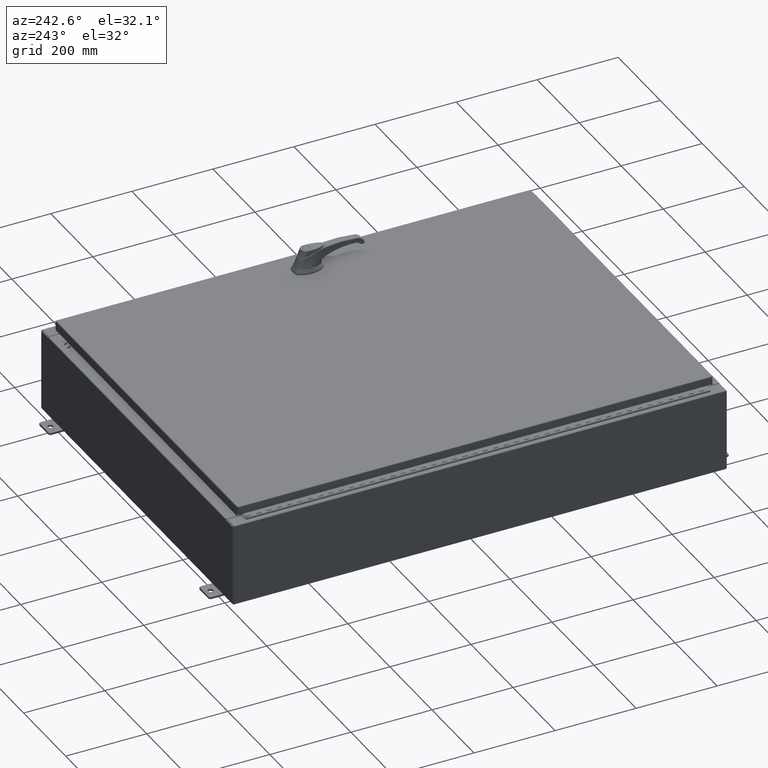
[diagram: clean part render]
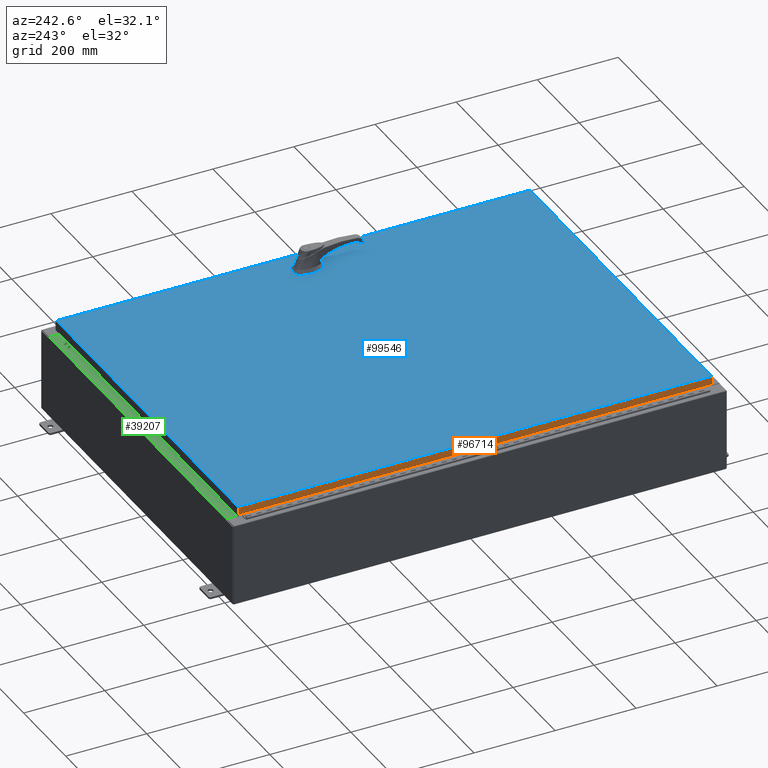
[diagram: same view with three faces highlighted in distinct colors, each labeled with its STEP entity id]
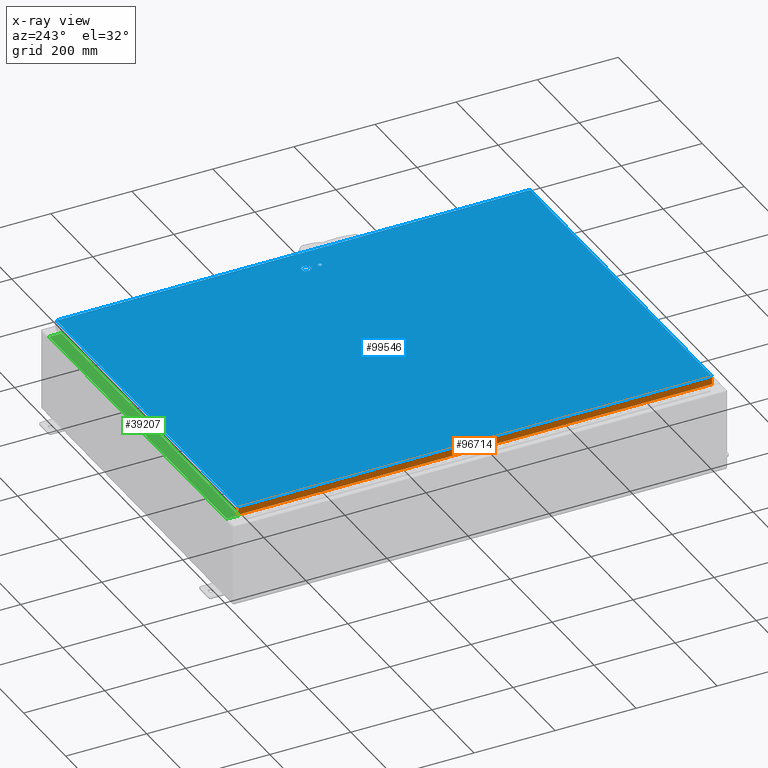
[diagram: x-ray of the same camera — body ghosted, the three highlighted faces saturated]
A machine part, auxiliary view with three faces highlighted in distinct colors.
The next image is the same camera in x-ray (body ghosted, the three faces saturated) — at least one of them is partly hidden behind the body in this view.
Their STEP definitions:

[orange] entity #96714 — the highlighted planar face has unit normal (1, -0, -0).
#936 = AXIS2_PLACEMENT_3D ( 'NONE', #68787, #6620, #79234 ) ;
#2539 = VERTEX_POINT ( 'NONE', #120400 ) ;
#6620 = DIRECTION ( 'NONE',  ( 1.000000000000000000, -9.463403459476060900E-017, -3.034122441942816500E-015 ) ) ;
#10476 = DIRECTION ( 'NONE',  ( -3.034122441942816100E-015, 6.982962677686267500E-015, -1.000000000000000000 ) ) ;
#13644 = LINE ( 'NONE', #41786, #123993 ) ;
#18206 = ORIENTED_EDGE ( 'NONE', *, *, #126277, .F. ) ;
#19407 = ORIENTED_EDGE ( 'NONE', *, *, #68568, .F. ) ;
#28041 = VERTEX_POINT ( 'NONE', #56480 ) ;
#29623 = LINE ( 'NONE', #124629, #50746 ) ;
#36156 = ORIENTED_EDGE ( 'NONE', *, *, #110078, .T. ) ;
#40625 = CARTESIAN_POINT ( 'NONE',  ( -17.07799999999999900, -23.00515786437627200, -0.07469999999999976700 ) ) ;
#41786 = CARTESIAN_POINT ( 'NONE',  ( -17.07799999999999600, 23.00515786437627200, 2.127217154807312100E-013 ) ) ;
#47891 = CARTESIAN_POINT ( 'NONE',  ( -17.07799999999999600, 23.00515786437627200, -0.08770000000000659200 ) ) ;
#49925 = CARTESIAN_POINT ( 'NONE',  ( -17.07800000000000300, -23.00515786437626900, -0.7949999999999996000 ) ) ;
#50746 = VECTOR ( 'NONE', #62575, 39.37007874015748100 ) ;
#53695 = FACE_OUTER_BOUND ( 'NONE', #122861, .T. ) ;
#56480 = CARTESIAN_POINT ( 'NONE',  ( -17.07799999999999600, 23.00515786437627600, -0.7949999999999941600 ) ) ;
#59309 = VECTOR ( 'NONE', #113140, 39.37007874015748100 ) ;
#61757 = VECTOR ( 'NONE', #99525, 39.37007874015748100 ) ;
#62575 = DIRECTION ( 'NONE',  ( -9.463403459476019000E-017, -1.000000000000000000, 1.419510518921414800E-016 ) ) ;
#64971 = LINE ( 'NONE', #89154, #61757 ) ;
#68568 = EDGE_CURVE ( 'NONE', #99094, #2539, #29623, .T. ) ;
#68787 = CARTESIAN_POINT ( 'NONE',  ( -17.07799999999999600, 1.616160042809321200E-015, 5.207755671951099000E-014 ) ) ;
#79234 = DIRECTION ( 'NONE',  ( -3.034122441942816500E-015, 0.0000000000000000000, -1.000000000000000000 ) ) ;
#86851 = LINE ( 'NONE', #40625, #59309 ) ;
#89154 = CARTESIAN_POINT ( 'NONE',  ( -17.07800000000000300, -23.09400000000000100, -0.7949999999999997100 ) ) ;
#96714 = ADVANCED_FACE ( 'NONE', ( #53695 ), #130382, .F. ) ;
#99094 = VERTEX_POINT ( 'NONE', #47891 ) ;
#99525 = DIRECTION ( 'NONE',  ( 9.463403459476099200E-017, 1.000000000000000000, 1.212498568245375300E-016 ) ) ;
#110078 = EDGE_CURVE ( 'NONE', #99094, #28041, #13644, .T. ) ;
#111644 = ORIENTED_EDGE ( 'NONE', *, *, #121402, .F. ) ;
#113140 = DIRECTION ( 'NONE',  ( -3.034122441942816100E-015, 6.982962677686267500E-015, -1.000000000000000000 ) ) ;
#120400 = CARTESIAN_POINT ( 'NONE',  ( -17.07799999999999900, -23.00515786437626900, -0.08770000000000334500 ) ) ;
#121402 = EDGE_CURVE ( 'NONE', #127265, #28041, #64971, .T. ) ;
#122861 = EDGE_LOOP ( 'NONE', ( #19407, #36156, #111644, #18206 ) ) ;
#123993 = VECTOR ( 'NONE', #10476, 39.37007874015748100 ) ;
#124629 = CARTESIAN_POINT ( 'NONE',  ( -17.07799999999999900, -23.09400000000000100, -0.08770000000000004200 ) ) ;
#126277 = EDGE_CURVE ( 'NONE', #2539, #127265, #86851, .T. ) ;
#127265 = VERTEX_POINT ( 'NONE', #49925 ) ;
#130382 = PLANE ( 'NONE',  #936 ) ;

[blue] entity #99546 — the highlighted planar face has unit normal (0, 0, -1).
#883 = EDGE_CURVE ( 'NONE', #61155, #41521, #65372, .T. ) ;
#2869 = DIRECTION ( 'NONE',  ( -1.000000000000000000, 0.0000000000000000000, -0.0000000000000000000 ) ) ;
#3921 = VERTEX_POINT ( 'NONE', #80426 ) ;
#5293 = CARTESIAN_POINT ( 'NONE',  ( 14.77822737075630900, -0.4029999999999252000, 0.0000000000000000000 ) ) ;
#6155 = FACE_BOUND ( 'NONE', #63723, .T. ) ;
#6734 = DIRECTION ( 'NONE',  ( -0.0000000000000000000, 0.0000000000000000000, 1.000000000000000000 ) ) ;
#6922 = EDGE_LOOP ( 'NONE', ( #128826, #97707, #24262, #122071, #64712, #117087, #12857, #109607 ) ) ;
#7640 = DIRECTION ( 'NONE',  ( 1.000000000000000000, 0.0000000000000000000, 0.0000000000000000000 ) ) ;
#8318 = DIRECTION ( 'NONE',  ( 1.000000000000000000, 0.0000000000000000000, 0.0000000000000000000 ) ) ;
#10211 = CARTESIAN_POINT ( 'NONE',  ( 14.77822737075630900, 0.4029999999999252000, 0.0000000000000000000 ) ) ;
#10338 = DIRECTION ( 'NONE',  ( 1.000000000000000000, 0.0000000000000000000, 0.0000000000000000000 ) ) ;
#10819 = LINE ( 'NONE', #11911, #90410 ) ;
#11876 = EDGE_CURVE ( 'NONE', #41132, #124020, #103745, .T. ) ;
#11911 = CARTESIAN_POINT ( 'NONE',  ( 0.0000000000000000000, 0.4029999999999252000, 0.0000000000000000000 ) ) ;
#12195 = VERTEX_POINT ( 'NONE', #106895 ) ;
#12362 = DIRECTION ( 'NONE',  ( 1.000000000000000000, 0.0000000000000000000, 0.0000000000000000000 ) ) ;
#12857 = ORIENTED_EDGE ( 'NONE', *, *, #62783, .F. ) ;
#14398 = AXIS2_PLACEMENT_3D ( 'NONE', #134579, #72496, #10338 ) ;
#14905 = EDGE_CURVE ( 'NONE', #116384, #95105, #67609, .T. ) ;
#16843 = ORIENTED_EDGE ( 'NONE', *, *, #131695, .T. ) ;
#17893 = VECTOR ( 'NONE', #21759, 39.37007874015748100 ) ;
#18120 = VECTOR ( 'NONE', #130661, 39.37007874015748100 ) ;
#19924 = AXIS2_PLACEMENT_3D ( 'NONE', #34948, #107517, #45446 ) ;
#20550 = CARTESIAN_POINT ( 'NONE',  ( 14.98099999999992900, -0.2002273707563079800, 0.0000000000000000000 ) ) ;
#21378 = CIRCLE ( 'NONE', #80277, 0.4499999999999168000 ) ;
#21759 = DIRECTION ( 'NONE',  ( 0.0000000000000000000, -1.000000000000000000, 0.0000000000000000000 ) ) ;
#22382 = DIRECTION ( 'NONE',  ( -1.000000000000000000, 0.0000000000000000000, 0.0000000000000000000 ) ) ;
#23394 = EDGE_CURVE ( 'NONE', #95105, #65739, #69519, .T. ) ;
#24262 = ORIENTED_EDGE ( 'NONE', *, *, #99492, .F. ) ;
#26230 = CARTESIAN_POINT ( 'NONE',  ( 14.98099999999992700, 0.2002273707563075900, 0.0000000000000000000 ) ) ;
#30557 = VERTEX_POINT ( 'NONE', #5293 ) ;
#34948 = CARTESIAN_POINT ( 'NONE',  ( 14.57799999999999900, -1.338000000000000100, 0.0000000000000000000 ) ) ;
#37017 = FACE_OUTER_BOUND ( 'NONE', #50247, .T. ) ;
#37639 = EDGE_CURVE ( 'NONE', #30557, #124020, #121395, .T. ) ;
#37789 = VECTOR ( 'NONE', #84915, 39.37007874015748100 ) ;
#38377 = CARTESIAN_POINT ( 'NONE',  ( 14.57799999999999900, 0.0000000000000000000, 0.0000000000000000000 ) ) ;
#39050 = DIRECTION ( 'NONE',  ( 5.457491617345625800E-015, -1.000000000000000000, 0.0000000000000000000 ) ) ;
#41132 = VERTEX_POINT ( 'NONE', #26230 ) ;
#41325 = EDGE_CURVE ( 'NONE', #41132, #113285, #49259, .T. ) ;
#41521 = VERTEX_POINT ( 'NONE', #51611 ) ;
#44129 = PLANE ( 'NONE',  #45456 ) ;
#44853 = CARTESIAN_POINT ( 'NONE',  ( 16.99029999999999800, 23.00630000000001000, 1.946441695485787500E-015 ) ) ;
#45446 = DIRECTION ( 'NONE',  ( 1.000000000000000000, 0.0000000000000000000, 0.0000000000000000000 ) ) ;
#45456 = AXIS2_PLACEMENT_3D ( 'NONE', #106221, #64999, #2869 ) ;
#46296 = CARTESIAN_POINT ( 'NONE',  ( -16.99029999999999800, -23.00630000000000300, 1.946441695485787500E-015 ) ) ;
#48836 = DIRECTION ( 'NONE',  ( 1.000000000000000000, 0.0000000000000000000, 0.0000000000000000000 ) ) ;
#49259 = CIRCLE ( 'NONE', #71018, 0.4499999999999168000 ) ;
#50247 = EDGE_LOOP ( 'NONE', ( #120468, #115023, #75147, #16843 ) ) ;
#51611 = CARTESIAN_POINT ( 'NONE',  ( 16.99029999999999800, -23.00630000000000300, -2.048885995248197400E-016 ) ) ;
#55957 = CARTESIAN_POINT ( 'NONE',  ( 14.17500000000007400, 0.0000000000000000000, 0.0000000000000000000 ) ) ;
#60561 = VERTEX_POINT ( 'NONE', #111290 ) ;
#61155 = VERTEX_POINT ( 'NONE', #66492 ) ;
#61416 = VECTOR ( 'NONE', #12362, 39.37007874015748100 ) ;
#62783 = EDGE_CURVE ( 'NONE', #113285, #116384, #10819, .T. ) ;
#63723 = EDGE_LOOP ( 'NONE', ( #102970, #125118 ) ) ;
#64332 = CARTESIAN_POINT ( 'NONE',  ( 14.17500000000007400, -0.2002273707563079800, 0.0000000000000000000 ) ) ;
#64712 = ORIENTED_EDGE ( 'NONE', *, *, #23394, .F. ) ;
#64999 = DIRECTION ( 'NONE',  ( 0.0000000000000000000, 0.0000000000000000000, -1.000000000000000000 ) ) ;
#65372 = LINE ( 'NONE', #46296, #37789 ) ;
#65739 = VERTEX_POINT ( 'NONE', #64332 ) ;
#66492 = CARTESIAN_POINT ( 'NONE',  ( -16.99029999999999800, -23.00630000000000300, 1.946441695485787500E-015 ) ) ;
#66589 = CARTESIAN_POINT ( 'NONE',  ( 14.37777262924369000, -0.4029999999999252000, 0.0000000000000000000 ) ) ;
#66675 = VERTEX_POINT ( 'NONE', #44853 ) ;
#67609 = CIRCLE ( 'NONE', #94659, 0.4499999999999168000 ) ;
#68902 = CARTESIAN_POINT ( 'NONE',  ( 14.57799999999999900, 0.0000000000000000000, 0.0000000000000000000 ) ) ;
#69519 = LINE ( 'NONE', #55957, #118119 ) ;
#69806 = DIRECTION ( 'NONE',  ( -0.0000000000000000000, 0.0000000000000000000, 1.000000000000000000 ) ) ;
#70465 = CIRCLE ( 'NONE', #120789, 0.1715000000000011500 ) ;
#70471 = DIRECTION ( 'NONE',  ( -0.0000000000000000000, 0.0000000000000000000, 1.000000000000000000 ) ) ;
#71018 = AXIS2_PLACEMENT_3D ( 'NONE', #131864, #69806, #7640 ) ;
#71898 = EDGE_CURVE ( 'NONE', #12195, #3921, #113427, .T. ) ;
#72496 = DIRECTION ( 'NONE',  ( -0.0000000000000000000, 0.0000000000000000000, 1.000000000000000000 ) ) ;
#72698 = VERTEX_POINT ( 'NONE', #66589 ) ;
#73670 = EDGE_CURVE ( 'NONE', #3921, #12195, #70465, .T. ) ;
#74549 = CARTESIAN_POINT ( 'NONE',  ( 0.0000000000000000000, -0.4029999999999252000, 0.0000000000000000000 ) ) ;
#75147 = ORIENTED_EDGE ( 'NONE', *, *, #133782, .T. ) ;
#76193 = VECTOR ( 'NONE', #39050, 39.37007874015748100 ) ;
#76548 = LINE ( 'NONE', #79041, #18120 ) ;
#79041 = CARTESIAN_POINT ( 'NONE',  ( 16.99029999999999800, -23.00630000000000300, -2.048885995248197400E-016 ) ) ;
#79347 = DIRECTION ( 'NONE',  ( 1.000000000000000000, 0.0000000000000000000, 0.0000000000000000000 ) ) ;
#80277 = AXIS2_PLACEMENT_3D ( 'NONE', #68902, #6734, #79347 ) ;
#80346 = CARTESIAN_POINT ( 'NONE',  ( 14.98099999999992700, 8.175868191945441800E-014, 0.0000000000000000000 ) ) ;
#80426 = CARTESIAN_POINT ( 'NONE',  ( 14.40649999999999800, -1.338000000000000100, 0.0000000000000000000 ) ) ;
#84915 = DIRECTION ( 'NONE',  ( 1.000000000000000000, -0.0000000000000000000, -0.0000000000000000000 ) ) ;
#85695 = FACE_BOUND ( 'NONE', #6922, .T. ) ;
#90410 = VECTOR ( 'NONE', #22382, 39.37007874015748100 ) ;
#94297 = CARTESIAN_POINT ( 'NONE',  ( -16.99029999999998400, 23.00630000000001000, -1.297627796990525000E-015 ) ) ;
#94659 = AXIS2_PLACEMENT_3D ( 'NONE', #38377, #110893, #48836 ) ;
#95105 = VERTEX_POINT ( 'NONE', #121576 ) ;
#97248 = VECTOR ( 'NONE', #104401, 39.37007874015748100 ) ;
#97707 = ORIENTED_EDGE ( 'NONE', *, *, #37639, .F. ) ;
#99492 = EDGE_CURVE ( 'NONE', #72698, #30557, #116516, .T. ) ;
#99546 = ADVANCED_FACE ( 'NONE', ( #6155, #37017, #85695 ), #44129, .F. ) ;
#102970 = ORIENTED_EDGE ( 'NONE', *, *, #71898, .F. ) ;
#103745 = LINE ( 'NONE', #80346, #76193 ) ;
#103881 = LINE ( 'NONE', #94297, #17893 ) ;
#104401 = DIRECTION ( 'NONE',  ( -1.000000000000000000, -0.0000000000000000000, -0.0000000000000000000 ) ) ;
#104553 = CARTESIAN_POINT ( 'NONE',  ( 14.37777262924369000, 0.4029999999999252000, 0.0000000000000000000 ) ) ;
#106221 = CARTESIAN_POINT ( 'NONE',  ( 0.0000000000000000000, 0.0000000000000000000, 0.0000000000000000000 ) ) ;
#106895 = CARTESIAN_POINT ( 'NONE',  ( 14.74950000000000100, -1.338000000000000100, 0.0000000000000000000 ) ) ;
#107517 = DIRECTION ( 'NONE',  ( -0.0000000000000000000, 0.0000000000000000000, 1.000000000000000000 ) ) ;
#109607 = ORIENTED_EDGE ( 'NONE', *, *, #41325, .F. ) ;
#110893 = DIRECTION ( 'NONE',  ( -0.0000000000000000000, 0.0000000000000000000, 1.000000000000000000 ) ) ;
#111290 = CARTESIAN_POINT ( 'NONE',  ( -16.99029999999998400, 23.00630000000001000, -1.297627796990525000E-015 ) ) ;
#112642 = EDGE_CURVE ( 'NONE', #65739, #72698, #21378, .T. ) ;
#113285 = VERTEX_POINT ( 'NONE', #10211 ) ;
#113427 = CIRCLE ( 'NONE', #19924, 0.1715000000000011500 ) ;
#115023 = ORIENTED_EDGE ( 'NONE', *, *, #120123, .T. ) ;
#116384 = VERTEX_POINT ( 'NONE', #104553 ) ;
#116516 = LINE ( 'NONE', #74549, #61416 ) ;
#117087 = ORIENTED_EDGE ( 'NONE', *, *, #14905, .F. ) ;
#118119 = VECTOR ( 'NONE', #128413, 39.37007874015748100 ) ;
#120123 = EDGE_CURVE ( 'NONE', #41521, #66675, #76548, .T. ) ;
#120468 = ORIENTED_EDGE ( 'NONE', *, *, #883, .T. ) ;
#120789 = AXIS2_PLACEMENT_3D ( 'NONE', #132533, #70471, #8318 ) ;
#121395 = CIRCLE ( 'NONE', #14398, 0.4499999999999168000 ) ;
#121576 = CARTESIAN_POINT ( 'NONE',  ( 14.17500000000007400, 0.2002273707563079800, 0.0000000000000000000 ) ) ;
#122071 = ORIENTED_EDGE ( 'NONE', *, *, #112642, .F. ) ;
#124020 = VERTEX_POINT ( 'NONE', #20550 ) ;
#125118 = ORIENTED_EDGE ( 'NONE', *, *, #73670, .F. ) ;
#125215 = CARTESIAN_POINT ( 'NONE',  ( 16.99029999999999800, 23.00630000000001000, 1.946441695485787500E-015 ) ) ;
#128033 = LINE ( 'NONE', #125215, #97248 ) ;
#128413 = DIRECTION ( 'NONE',  ( 0.0000000000000000000, -1.000000000000000000, 0.0000000000000000000 ) ) ;
#128826 = ORIENTED_EDGE ( 'NONE', *, *, #11876, .T. ) ;
#130661 = DIRECTION ( 'NONE',  ( 0.0000000000000000000, 1.000000000000000000, 0.0000000000000000000 ) ) ;
#131695 = EDGE_CURVE ( 'NONE', #60561, #61155, #103881, .T. ) ;
#131864 = CARTESIAN_POINT ( 'NONE',  ( 14.57799999999999900, 0.0000000000000000000, 0.0000000000000000000 ) ) ;
#132533 = CARTESIAN_POINT ( 'NONE',  ( 14.57799999999999900, -1.338000000000000100, 0.0000000000000000000 ) ) ;
#133782 = EDGE_CURVE ( 'NONE', #66675, #60561, #128033, .T. ) ;
#134579 = CARTESIAN_POINT ( 'NONE',  ( 14.57799999999999900, 0.0000000000000000000, 0.0000000000000000000 ) ) ;

[green] entity #39207 — the highlighted planar face has unit normal (0, 0, 1).
#5194 = VERTEX_POINT ( 'NONE', #85774 ) ;
#5580 = CARTESIAN_POINT ( 'NONE',  ( 16.63720000000000700, -0.08769999999999937600, 4.000000000000000900 ) ) ;
#6307 = PLANE ( 'NONE',  #70035 ) ;
#11070 = DIRECTION ( 'NONE',  ( -1.000000000000000000, 3.284023746380717400E-017, -1.171208052571274300E-031 ) ) ;
#13577 = CARTESIAN_POINT ( 'NONE',  ( 16.63720000000000400, -1.287299999999999900, 4.000000000000004400 ) ) ;
#19083 = LINE ( 'NONE', #48366, #126071 ) ;
#22250 = LINE ( 'NONE', #128880, #108223 ) ;
#27167 = CARTESIAN_POINT ( 'NONE',  ( 0.0000000000000000000, 1.425992975200418500E-014, 4.000000000000000900 ) ) ;
#35541 = EDGE_CURVE ( 'NONE', #38691, #54846, #63100, .T. ) ;
#36511 = ORIENTED_EDGE ( 'NONE', *, *, #35541, .T. ) ;
#38583 = EDGE_CURVE ( 'NONE', #38691, #52729, #22250, .T. ) ;
#38691 = VERTEX_POINT ( 'NONE', #5580 ) ;
#39207 = ADVANCED_FACE ( 'NONE', ( #56237 ), #6307, .T. ) ;
#45112 = VECTOR ( 'NONE', #118894, 39.37007874015748100 ) ;
#45310 = EDGE_LOOP ( 'NONE', ( #60786, #69293, #83993, #36511 ) ) ;
#48021 = EDGE_CURVE ( 'NONE', #52729, #5194, #19083, .T. ) ;
#48081 = DIRECTION ( 'NONE',  ( 0.0000000000000000000, 3.566381192773190000E-015, 1.000000000000000000 ) ) ;
#48366 = CARTESIAN_POINT ( 'NONE',  ( 16.63720000000000700, -1.287299999999999900, 4.000000000000004400 ) ) ;
#52729 = VERTEX_POINT ( 'NONE', #13577 ) ;
#54846 = VERTEX_POINT ( 'NONE', #68053 ) ;
#56237 = FACE_OUTER_BOUND ( 'NONE', #45310, .T. ) ;
#60786 = ORIENTED_EDGE ( 'NONE', *, *, #99750, .F. ) ;
#63100 = LINE ( 'NONE', #83654, #105223 ) ;
#68053 = CARTESIAN_POINT ( 'NONE',  ( -16.63719999999999600, -0.08769999999999972300, 4.000000000000000900 ) ) ;
#69293 = ORIENTED_EDGE ( 'NONE', *, *, #48021, .F. ) ;
#69472 = LINE ( 'NONE', #77673, #45112 ) ;
#70035 = AXIS2_PLACEMENT_3D ( 'NONE', #27167, #48081, #120568 ) ;
#77275 = DIRECTION ( 'NONE',  ( -0.0000000000000000000, -1.000000000000000000, 3.566381192773190000E-015 ) ) ;
#77673 = CARTESIAN_POINT ( 'NONE',  ( -16.63719999999999600, -0.07469999999999973900, 4.000000000000000900 ) ) ;
#83654 = CARTESIAN_POINT ( 'NONE',  ( -2.880088825576348200E-018, -0.08769999999999972300, 4.000000000000000900 ) ) ;
#83993 = ORIENTED_EDGE ( 'NONE', *, *, #38583, .F. ) ;
#85774 = CARTESIAN_POINT ( 'NONE',  ( -16.63719999999999600, -1.287299999999999200, 4.000000000000004400 ) ) ;
#90100 = DIRECTION ( 'NONE',  ( -1.000000000000000000, 0.0000000000000000000, 0.0000000000000000000 ) ) ;
#99750 = EDGE_CURVE ( 'NONE', #5194, #54846, #69472, .T. ) ;
#105223 = VECTOR ( 'NONE', #11070, 39.37007874015748100 ) ;
#108223 = VECTOR ( 'NONE', #77275, 39.37007874015748100 ) ;
#118894 = DIRECTION ( 'NONE',  ( -0.0000000000000000000, 1.000000000000000000, -3.566381192773190000E-015 ) ) ;
#120568 = DIRECTION ( 'NONE',  ( 0.0000000000000000000, -1.000000000000000000, 3.566381192773190000E-015 ) ) ;
#126071 = VECTOR ( 'NONE', #90100, 39.37007874015748100 ) ;
#128880 = CARTESIAN_POINT ( 'NONE',  ( 16.63720000000000400, -1.300299999999999800, 4.000000000000004400 ) ) ;